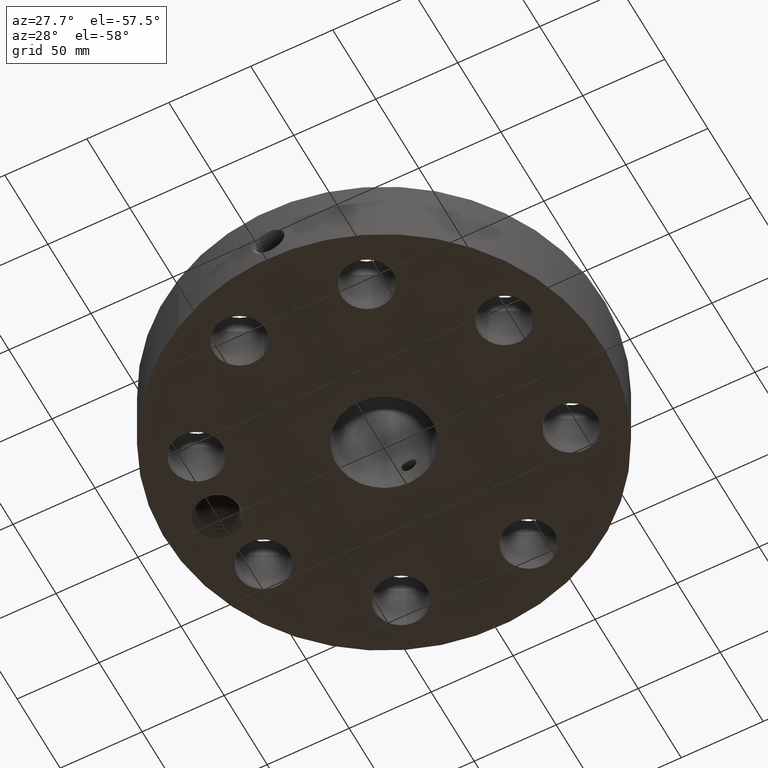
[diagram: clean part render]
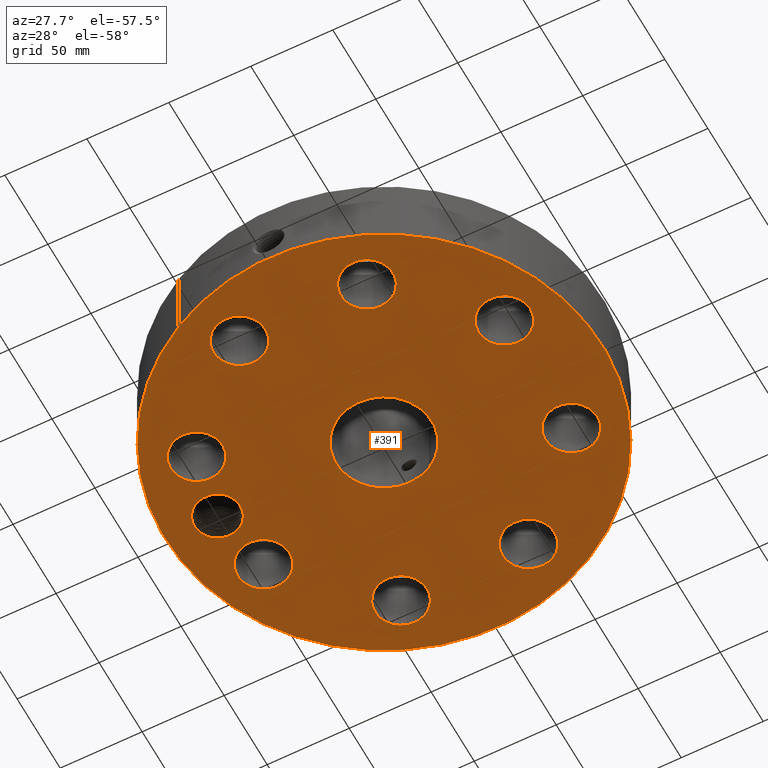
[diagram: same view with one face highlighted and labeled with its STEP entity id]
A machine part, auxiliary view. The second image highlights one B-rep face of the part: STEP entity #391.
In plain terms, the highlighted planar face has unit normal (0, 0, -1).
Its self-contained STEP definition (entity closure, byte-faithful):
#42=AXIS2_PLACEMENT_3D('Circle Axis2P3D',#40,#41,$) ;
#164=AXIS2_PLACEMENT_3D('Plane Axis2P3D',#161,#162,#163) ;
#168=AXIS2_PLACEMENT_3D('Circle Axis2P3D',#166,#167,$) ;
#177=AXIS2_PLACEMENT_3D('Circle Axis2P3D',#175,#176,$) ;
#186=AXIS2_PLACEMENT_3D('Circle Axis2P3D',#184,#185,$) ;
#193=AXIS2_PLACEMENT_3D('Circle Axis2P3D',#191,#192,$) ;
#231=AXIS2_PLACEMENT_3D('Circle Axis2P3D',#229,#230,$) ;
#240=AXIS2_PLACEMENT_3D('Circle Axis2P3D',#238,#239,$) ;
#249=AXIS2_PLACEMENT_3D('Circle Axis2P3D',#247,#248,$) ;
#258=AXIS2_PLACEMENT_3D('Circle Axis2P3D',#256,#257,$) ;
#267=AXIS2_PLACEMENT_3D('Circle Axis2P3D',#265,#266,$) ;
#276=AXIS2_PLACEMENT_3D('Circle Axis2P3D',#274,#275,$) ;
#285=AXIS2_PLACEMENT_3D('Circle Axis2P3D',#283,#284,$) ;
#294=AXIS2_PLACEMENT_3D('Circle Axis2P3D',#292,#293,$) ;
#303=AXIS2_PLACEMENT_3D('Circle Axis2P3D',#301,#302,$) ;
#312=AXIS2_PLACEMENT_3D('Circle Axis2P3D',#310,#311,$) ;
#321=AXIS2_PLACEMENT_3D('Circle Axis2P3D',#319,#320,$) ;
#330=AXIS2_PLACEMENT_3D('Circle Axis2P3D',#328,#329,$) ;
#339=AXIS2_PLACEMENT_3D('Circle Axis2P3D',#337,#338,$) ;
#348=AXIS2_PLACEMENT_3D('Circle Axis2P3D',#346,#347,$) ;
#357=AXIS2_PLACEMENT_3D('Circle Axis2P3D',#355,#356,$) ;
#366=AXIS2_PLACEMENT_3D('Circle Axis2P3D',#364,#365,$) ;
#375=AXIS2_PLACEMENT_3D('Circle Axis2P3D',#373,#374,$) ;
#384=AXIS2_PLACEMENT_3D('Circle Axis2P3D',#382,#383,$) ;
#40=CARTESIAN_POINT('Axis2P3D Location',(0.,0.,0.250000000001)) ;
#44=CARTESIAN_POINT('Vertex',(-2.51698407768,-4.60730844994,0.250000000001)) ;
#46=CARTESIAN_POINT('Vertex',(2.51698407768,4.60730844994,0.250000000001)) ;
#161=CARTESIAN_POINT('Axis2P3D Location',(0.,1.15,0.250000000001)) ;
#166=CARTESIAN_POINT('Axis2P3D Location',(0.,0.,0.250000000001)) ;
#175=CARTESIAN_POINT('Axis2P3D Location',(-4.00000000002,-1.39870617276E-016,0.250000000001)) ;
#179=CARTESIAN_POINT('Vertex',(-3.51539890934,-0.264738782418,0.250000000001)) ;
#181=CARTESIAN_POINT('Vertex',(-3.52248204844,-0.277311099527,0.250000000001)) ;
#184=CARTESIAN_POINT('Axis2P3D Location',(-4.00000000002,-1.39870617276E-016,0.250000000001)) ;
#188=CARTESIAN_POINT('Vertex',(-4.48460109069,0.264738782418,0.250000000001)) ;
#191=CARTESIAN_POINT('Axis2P3D Location',(-4.00000000002,-1.39870617276E-016,0.250000000001)) ;
#195=CARTESIAN_POINT('Vertex',(-3.92517149544,-0.547106511482,0.250000000001)) ;
#199=CARTESIAN_POINT('Control Point',(-3.68690882036,-0.467311797756,0.250000000001)) ;
#200=CARTESIAN_POINT('Control Point',(-3.72839013016,-0.49274146922,0.250000000001)) ;
#201=CARTESIAN_POINT('Control Point',(-3.77253596118,-0.513632346121,0.250000000001)) ;
#202=CARTESIAN_POINT('Control Point',(-3.81870024878,-0.529602298381,0.250000000001)) ;
#203=CARTESIAN_POINT('Control Point',(-3.8683302138,-0.54089694491,0.250000000001)) ;
#204=CARTESIAN_POINT('Control Point',(-3.91853049118,-0.546440817631,0.250000000001)) ;
#205=CARTESIAN_POINT('Control Point',(-3.920743226,-0.54667389626,0.250000000001)) ;
#206=CARTESIAN_POINT('Control Point',(-3.92295691896,-0.546895796458,0.250000000001)) ;
#207=CARTESIAN_POINT('Control Point',(-3.92517149544,-0.547106511482,0.250000000001)) ;
#208=CARTESIAN_POINT('Vertex',(-3.68690882036,-0.467311797759,0.250000000001)) ;
#212=CARTESIAN_POINT('Control Point',(-3.68690882036,-0.467311797759,0.250000000001)) ;
#213=CARTESIAN_POINT('Control Point',(-3.64761506577,-0.438625197695,0.250000000001)) ;
#214=CARTESIAN_POINT('Control Point',(-3.61150316262,-0.405747386375,0.250000000001)) ;
#215=CARTESIAN_POINT('Control Point',(-3.57917314292,-0.369129229898,0.250000000001)) ;
#216=CARTESIAN_POINT('Control Point',(-3.54984801355,-0.327524126235,0.250000000001)) ;
#217=CARTESIAN_POINT('Control Point',(-3.52562474978,-0.283201858542,0.250000000001)) ;
#218=CARTESIAN_POINT('Control Point',(-3.52456719137,-0.281243395057,0.250000000001)) ;
#219=CARTESIAN_POINT('Control Point',(-3.52351961269,-0.27927978652,0.250000000001)) ;
#220=CARTESIAN_POINT('Control Point',(-3.52248204844,-0.277311099527,0.250000000001)) ;
#229=CARTESIAN_POINT('Axis2P3D Location',(3.69551813006,-1.53073372947,0.250000000001)) ;
#233=CARTESIAN_POINT('Vertex',(4.24400723124,-1.8303746911,0.250000000001)) ;
#235=CARTESIAN_POINT('Vertex',(3.14702902888,-1.23109276784,0.250000000001)) ;
#238=CARTESIAN_POINT('Axis2P3D Location',(3.69551813006,-1.53073372947,0.250000000001)) ;
#247=CARTESIAN_POINT('Axis2P3D Location',(0.,0.,0.250000000001)) ;
#251=CARTESIAN_POINT('Vertex',(0.551339369397,1.00921994618,0.250000000001)) ;
#253=CARTESIAN_POINT('Vertex',(-0.551339369397,-1.00921994618,0.250000000001)) ;
#256=CARTESIAN_POINT('Axis2P3D Location',(0.,0.,0.250000000001)) ;
#265=CARTESIAN_POINT('Axis2P3D Location',(1.53073372947,-3.69551813006,0.250000000001)) ;
#269=CARTESIAN_POINT('Vertex',(1.3547715225,-3.09579961132,0.250000000001)) ;
#271=CARTESIAN_POINT('Vertex',(1.70669593643,-4.2952366488,0.250000000001)) ;
#274=CARTESIAN_POINT('Axis2P3D Location',(1.53073372947,-3.69551813006,0.250000000001)) ;
#283=CARTESIAN_POINT('Axis2P3D Location',(-1.53073372947,-3.69551813006,0.250000000001)) ;
#287=CARTESIAN_POINT('Vertex',(-1.23109276784,-3.14702902888,0.250000000001)) ;
#289=CARTESIAN_POINT('Vertex',(-1.8303746911,-4.24400723124,0.250000000001)) ;
#292=CARTESIAN_POINT('Axis2P3D Location',(-1.53073372947,-3.69551813006,0.250000000001)) ;
#301=CARTESIAN_POINT('Axis2P3D Location',(-3.69551813006,-1.53073372947,0.250000000001)) ;
#305=CARTESIAN_POINT('Vertex',(-3.09579961132,-1.3547715225,0.250000000001)) ;
#307=CARTESIAN_POINT('Vertex',(-4.2952366488,-1.70669593643,0.250000000001)) ;
#310=CARTESIAN_POINT('Axis2P3D Location',(-3.69551813006,-1.53073372947,0.250000000001)) ;
#319=CARTESIAN_POINT('Axis2P3D Location',(-3.69551813006,1.53073372947,0.250000000001)) ;
#323=CARTESIAN_POINT('Vertex',(-3.14702902888,1.23109276784,0.250000000001)) ;
#325=CARTESIAN_POINT('Vertex',(-4.24400723124,1.8303746911,0.250000000001)) ;
#328=CARTESIAN_POINT('Axis2P3D Location',(-3.69551813006,1.53073372947,0.250000000001)) ;
#337=CARTESIAN_POINT('Axis2P3D Location',(-1.53073372947,3.69551813006,0.250000000001)) ;
#341=CARTESIAN_POINT('Vertex',(-1.3547715225,3.09579961132,0.250000000001)) ;
#343=CARTESIAN_POINT('Vertex',(-1.70669593643,4.2952366488,0.250000000001)) ;
#346=CARTESIAN_POINT('Axis2P3D Location',(-1.53073372947,3.69551813006,0.250000000001)) ;
#355=CARTESIAN_POINT('Axis2P3D Location',(1.53073372947,3.69551813006,0.250000000001)) ;
#359=CARTESIAN_POINT('Vertex',(1.23109276784,3.14702902888,0.250000000001)) ;
#361=CARTESIAN_POINT('Vertex',(1.8303746911,4.24400723124,0.250000000001)) ;
#364=CARTESIAN_POINT('Axis2P3D Location',(1.53073372947,3.69551813006,0.250000000001)) ;
#373=CARTESIAN_POINT('Axis2P3D Location',(3.69551813006,1.53073372947,0.250000000001)) ;
#377=CARTESIAN_POINT('Vertex',(3.09579961132,1.3547715225,0.250000000001)) ;
#379=CARTESIAN_POINT('Vertex',(4.2952366488,1.70669593643,0.250000000001)) ;
#382=CARTESIAN_POINT('Axis2P3D Location',(3.69551813006,1.53073372947,0.250000000001)) ;
#41=DIRECTION('Axis2P3D Direction',(0.,0.,-0.0393700787402)) ;
#162=DIRECTION('Axis2P3D Direction',(0.,0.,-0.0393700787402)) ;
#163=DIRECTION('Axis2P3D XDirection',(0.0393700787402,0.,0.)) ;
#167=DIRECTION('Axis2P3D Direction',(0.,0.,-0.0393700787402)) ;
#176=DIRECTION('Axis2P3D Direction',(0.,0.,-0.0393700787402)) ;
#185=DIRECTION('Axis2P3D Direction',(0.,0.,-0.0393700787402)) ;
#192=DIRECTION('Axis2P3D Direction',(0.,0.,-0.0393700787402)) ;
#230=DIRECTION('Axis2P3D Direction',(0.,0.,-0.0393700787402)) ;
#239=DIRECTION('Axis2P3D Direction',(0.,0.,-0.0393700787402)) ;
#248=DIRECTION('Axis2P3D Direction',(0.,0.,-0.0393700787402)) ;
#257=DIRECTION('Axis2P3D Direction',(0.,0.,-0.0393700787402)) ;
#266=DIRECTION('Axis2P3D Direction',(0.,0.,-0.0393700787402)) ;
#275=DIRECTION('Axis2P3D Direction',(0.,0.,-0.0393700787402)) ;
#284=DIRECTION('Axis2P3D Direction',(0.,0.,-0.0393700787402)) ;
#293=DIRECTION('Axis2P3D Direction',(0.,0.,-0.0393700787402)) ;
#302=DIRECTION('Axis2P3D Direction',(0.,0.,-0.0393700787402)) ;
#311=DIRECTION('Axis2P3D Direction',(0.,0.,-0.0393700787402)) ;
#320=DIRECTION('Axis2P3D Direction',(0.,0.,-0.0393700787402)) ;
#329=DIRECTION('Axis2P3D Direction',(0.,0.,-0.0393700787402)) ;
#338=DIRECTION('Axis2P3D Direction',(0.,0.,-0.0393700787402)) ;
#347=DIRECTION('Axis2P3D Direction',(0.,0.,-0.0393700787402)) ;
#356=DIRECTION('Axis2P3D Direction',(0.,0.,-0.0393700787402)) ;
#365=DIRECTION('Axis2P3D Direction',(0.,0.,-0.0393700787402)) ;
#374=DIRECTION('Axis2P3D Direction',(0.,0.,-0.0393700787402)) ;
#383=DIRECTION('Axis2P3D Direction',(0.,0.,-0.0393700787402)) ;
#172=ORIENTED_EDGE('',*,*,#48,.T.) ;
#173=ORIENTED_EDGE('',*,*,#170,.T.) ;
#223=ORIENTED_EDGE('',*,*,#183,.F.) ;
#224=ORIENTED_EDGE('',*,*,#190,.F.) ;
#225=ORIENTED_EDGE('',*,*,#197,.F.) ;
#226=ORIENTED_EDGE('',*,*,#210,.F.) ;
#227=ORIENTED_EDGE('',*,*,#221,.T.) ;
#244=ORIENTED_EDGE('',*,*,#237,.F.) ;
#245=ORIENTED_EDGE('',*,*,#242,.F.) ;
#262=ORIENTED_EDGE('',*,*,#255,.F.) ;
#263=ORIENTED_EDGE('',*,*,#260,.F.) ;
#280=ORIENTED_EDGE('',*,*,#273,.F.) ;
#281=ORIENTED_EDGE('',*,*,#278,.F.) ;
#298=ORIENTED_EDGE('',*,*,#291,.F.) ;
#299=ORIENTED_EDGE('',*,*,#296,.F.) ;
#316=ORIENTED_EDGE('',*,*,#309,.F.) ;
#317=ORIENTED_EDGE('',*,*,#314,.F.) ;
#334=ORIENTED_EDGE('',*,*,#327,.F.) ;
#335=ORIENTED_EDGE('',*,*,#332,.F.) ;
#352=ORIENTED_EDGE('',*,*,#345,.F.) ;
#353=ORIENTED_EDGE('',*,*,#350,.F.) ;
#370=ORIENTED_EDGE('',*,*,#363,.F.) ;
#371=ORIENTED_EDGE('',*,*,#368,.F.) ;
#388=ORIENTED_EDGE('',*,*,#381,.F.) ;
#389=ORIENTED_EDGE('',*,*,#386,.F.) ;
#228=FACE_BOUND('',#222,.T.) ;
#246=FACE_BOUND('',#243,.T.) ;
#264=FACE_BOUND('',#261,.T.) ;
#282=FACE_BOUND('',#279,.T.) ;
#300=FACE_BOUND('',#297,.T.) ;
#318=FACE_BOUND('',#315,.T.) ;
#336=FACE_BOUND('',#333,.T.) ;
#354=FACE_BOUND('',#351,.T.) ;
#372=FACE_BOUND('',#369,.T.) ;
#390=FACE_BOUND('',#387,.T.) ;
#391=ADVANCED_FACE('PartBody',(#174,#228,#246,#264,#282,#300,#318,#336,#354,#372,#390),#165,.T.) ;
#198=B_SPLINE_CURVE_WITH_KNOTS('',5,(#199,#200,#201,#202,#203,#204,#205,#206,#207),.UNSPECIFIED.,.F.,.U.,(6,3,6),(0.,8.49987753966,8.89162073282),.UNSPECIFIED.) ;
#211=B_SPLINE_CURVE_WITH_KNOTS('',5,(#212,#213,#214,#215,#216,#217,#218,#219,#220),.UNSPECIFIED.,.F.,.U.,(6,3,6),(0.,8.49907887946,8.89089456627),.UNSPECIFIED.) ;
#43=CIRCLE('generated circle',#42,5.25000000002) ;
#169=CIRCLE('generated circle',#168,5.25000000002) ;
#178=CIRCLE('generated circle',#177,0.552200000002) ;
#187=CIRCLE('generated circle',#186,0.552200000002) ;
#194=CIRCLE('generated circle',#193,0.552200000002) ;
#232=CIRCLE('generated circle',#231,0.625000000002) ;
#241=CIRCLE('generated circle',#240,0.625000000002) ;
#250=CIRCLE('generated circle',#249,1.15) ;
#259=CIRCLE('generated circle',#258,1.15) ;
#268=CIRCLE('generated circle',#267,0.625000000003) ;
#277=CIRCLE('generated circle',#276,0.625000000003) ;
#286=CIRCLE('generated circle',#285,0.625000000002) ;
#295=CIRCLE('generated circle',#294,0.625000000002) ;
#304=CIRCLE('generated circle',#303,0.625000000003) ;
#313=CIRCLE('generated circle',#312,0.625000000003) ;
#322=CIRCLE('generated circle',#321,0.625000000002) ;
#331=CIRCLE('generated circle',#330,0.625000000002) ;
#340=CIRCLE('generated circle',#339,0.625000000003) ;
#349=CIRCLE('generated circle',#348,0.625000000003) ;
#358=CIRCLE('generated circle',#357,0.625000000003) ;
#367=CIRCLE('generated circle',#366,0.625000000003) ;
#376=CIRCLE('generated circle',#375,0.625000000003) ;
#385=CIRCLE('generated circle',#384,0.625000000003) ;
#48=EDGE_CURVE('',#45,#47,#43,.T.) ;
#170=EDGE_CURVE('',#47,#45,#169,.T.) ;
#183=EDGE_CURVE('',#180,#182,#178,.T.) ;
#190=EDGE_CURVE('',#189,#180,#187,.T.) ;
#197=EDGE_CURVE('',#196,#189,#194,.T.) ;
#210=EDGE_CURVE('',#209,#196,#198,.T.) ;
#221=EDGE_CURVE('',#209,#182,#211,.T.) ;
#237=EDGE_CURVE('',#234,#236,#232,.T.) ;
#242=EDGE_CURVE('',#236,#234,#241,.T.) ;
#255=EDGE_CURVE('',#252,#254,#250,.T.) ;
#260=EDGE_CURVE('',#254,#252,#259,.T.) ;
#273=EDGE_CURVE('',#270,#272,#268,.T.) ;
#278=EDGE_CURVE('',#272,#270,#277,.T.) ;
#291=EDGE_CURVE('',#288,#290,#286,.T.) ;
#296=EDGE_CURVE('',#290,#288,#295,.T.) ;
#309=EDGE_CURVE('',#306,#308,#304,.T.) ;
#314=EDGE_CURVE('',#308,#306,#313,.T.) ;
#327=EDGE_CURVE('',#324,#326,#322,.T.) ;
#332=EDGE_CURVE('',#326,#324,#331,.T.) ;
#345=EDGE_CURVE('',#342,#344,#340,.T.) ;
#350=EDGE_CURVE('',#344,#342,#349,.T.) ;
#363=EDGE_CURVE('',#360,#362,#358,.T.) ;
#368=EDGE_CURVE('',#362,#360,#367,.T.) ;
#381=EDGE_CURVE('',#378,#380,#376,.T.) ;
#386=EDGE_CURVE('',#380,#378,#385,.T.) ;
#171=EDGE_LOOP('',(#172,#173)) ;
#222=EDGE_LOOP('',(#223,#224,#225,#226,#227)) ;
#243=EDGE_LOOP('',(#244,#245)) ;
#261=EDGE_LOOP('',(#262,#263)) ;
#279=EDGE_LOOP('',(#280,#281)) ;
#297=EDGE_LOOP('',(#298,#299)) ;
#315=EDGE_LOOP('',(#316,#317)) ;
#333=EDGE_LOOP('',(#334,#335)) ;
#351=EDGE_LOOP('',(#352,#353)) ;
#369=EDGE_LOOP('',(#370,#371)) ;
#387=EDGE_LOOP('',(#388,#389)) ;
#174=FACE_OUTER_BOUND('',#171,.T.) ;
#165=PLANE('',#164) ;
#45=VERTEX_POINT('',#44) ;
#47=VERTEX_POINT('',#46) ;
#180=VERTEX_POINT('',#179) ;
#182=VERTEX_POINT('',#181) ;
#189=VERTEX_POINT('',#188) ;
#196=VERTEX_POINT('',#195) ;
#209=VERTEX_POINT('',#208) ;
#234=VERTEX_POINT('',#233) ;
#236=VERTEX_POINT('',#235) ;
#252=VERTEX_POINT('',#251) ;
#254=VERTEX_POINT('',#253) ;
#270=VERTEX_POINT('',#269) ;
#272=VERTEX_POINT('',#271) ;
#288=VERTEX_POINT('',#287) ;
#290=VERTEX_POINT('',#289) ;
#306=VERTEX_POINT('',#305) ;
#308=VERTEX_POINT('',#307) ;
#324=VERTEX_POINT('',#323) ;
#326=VERTEX_POINT('',#325) ;
#342=VERTEX_POINT('',#341) ;
#344=VERTEX_POINT('',#343) ;
#360=VERTEX_POINT('',#359) ;
#362=VERTEX_POINT('',#361) ;
#378=VERTEX_POINT('',#377) ;
#380=VERTEX_POINT('',#379) ;